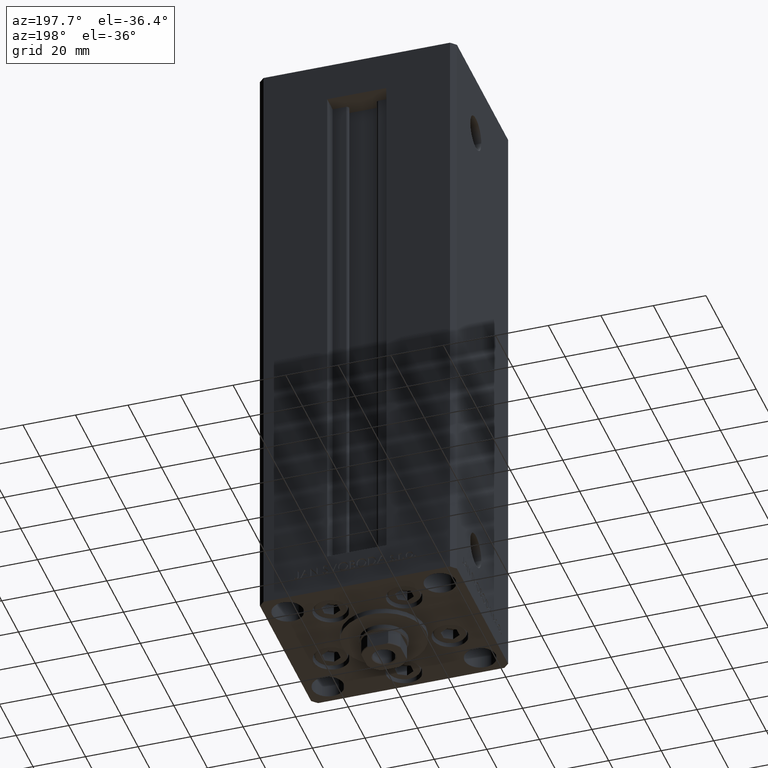
[diagram: clean part render]
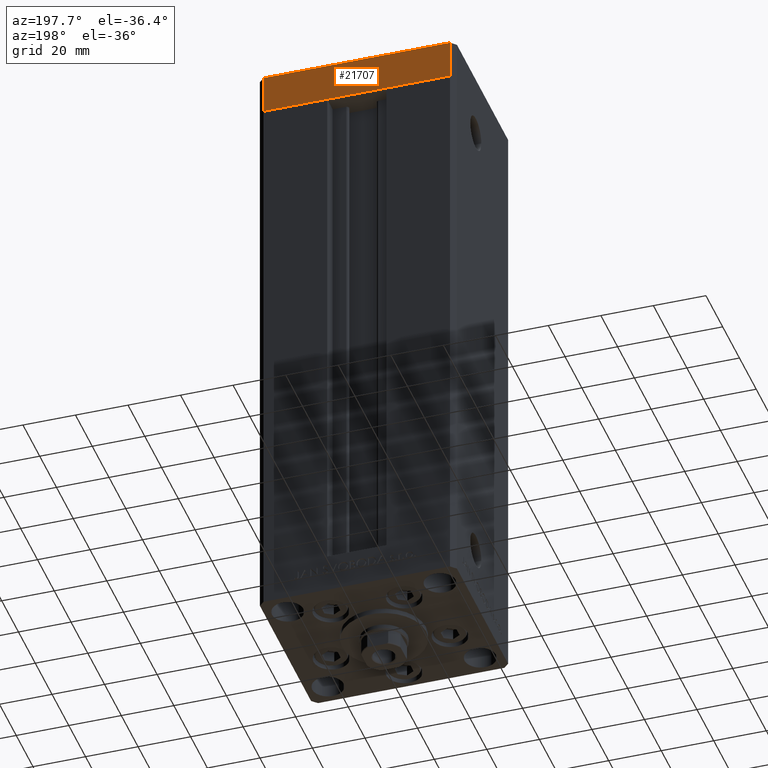
[diagram: same view with one face highlighted and labeled with its STEP entity id]
A machine part, auxiliary view. The second image highlights one B-rep face of the part: STEP entity #21707.
In plain terms, the highlighted planar face has unit normal (-0, 1, 0).
Its self-contained STEP definition (entity closure, byte-faithful):
#128 = VERTEX_POINT ( 'NONE', #33953 ) ;
#961 = ORIENTED_EDGE ( 'NONE', *, *, #27291, .T. ) ;
#1915 = DIRECTION ( 'NONE',  ( 0.000000000000000000, 0.000000000000000000, 1.000000000000000000 ) ) ;
#2843 = CARTESIAN_POINT ( 'NONE',  ( 35.49999999999992184, 32.50000000000000711, -15.00000000000000000 ) ) ;
#3386 = ORIENTED_EDGE ( 'NONE', *, *, #22346, .F. ) ;
#3947 = DIRECTION ( 'NONE',  ( -1.000000000000000000, -1.954618001100629052E-16, 0.000000000000000000 ) ) ;
#4448 = ORIENTED_EDGE ( 'NONE', *, *, #36190, .F. ) ;
#5052 = EDGE_CURVE ( 'NONE', #49564, #22834, #13404, .T. ) ;
#8664 = VECTOR ( 'NONE', #21188, 1000.000000000000000 ) ;
#10598 = CARTESIAN_POINT ( 'NONE',  ( 35.49999999999992184, 32.50000000000000711, -15.00000000000000000 ) ) ;
#11730 = CARTESIAN_POINT ( 'NONE',  ( 35.49999999999992184, 32.50000000000000711, -15.00000000000000000 ) ) ;
#11981 = DIRECTION ( 'NONE',  ( -1.954618001100629052E-16, 1.000000000000000000, 0.000000000000000000 ) ) ;
#12170 = EDGE_LOOP ( 'NONE', ( #3386, #4448, #29431, #961 ) ) ;
#13404 = LINE ( 'NONE', #2843, #8664 ) ;
#15020 = CARTESIAN_POINT ( 'NONE',  ( -35.50000000000002842, 32.49999999999999289, 0.000000000000000000 ) ) ;
#20393 = VECTOR ( 'NONE', #1915, 1000.000000000000000 ) ;
#20865 = CARTESIAN_POINT ( 'NONE',  ( 35.49999999999992184, 32.50000000000000711, -15.00000000000000000 ) ) ;
#21188 = DIRECTION ( 'NONE',  ( -1.000000000000000000, -1.954618001100629052E-16, 0.000000000000000000 ) ) ;
#21248 = LINE ( 'NONE', #28579, #20393 ) ;
#21707 = ADVANCED_FACE ( 'NONE', ( #26822 ), #38384, .T. ) ;
#22346 = EDGE_CURVE ( 'NONE', #128, #31719, #33844, .T. ) ;
#22834 = VERTEX_POINT ( 'NONE', #25634 ) ;
#25634 = CARTESIAN_POINT ( 'NONE',  ( -35.50000000000002842, 32.49999999999999289, -15.00000000000000000 ) ) ;
#26822 = FACE_OUTER_BOUND ( 'NONE', #12170, .T. ) ;
#27291 = EDGE_CURVE ( 'NONE', #22834, #31719, #21248, .T. ) ;
#28391 = AXIS2_PLACEMENT_3D ( 'NONE', #11730, #11981, #3947 ) ;
#28579 = CARTESIAN_POINT ( 'NONE',  ( -35.50000000000002842, 32.49999999999999289, -15.00000000000000000 ) ) ;
#29084 = DIRECTION ( 'NONE',  ( -1.000000000000000000, -1.954618001100629052E-16, 0.000000000000000000 ) ) ;
#29431 = ORIENTED_EDGE ( 'NONE', *, *, #5052, .T. ) ;
#29964 = DIRECTION ( 'NONE',  ( 0.000000000000000000, 0.000000000000000000, 1.000000000000000000 ) ) ;
#31170 = VECTOR ( 'NONE', #29964, 1000.000000000000000 ) ;
#31719 = VERTEX_POINT ( 'NONE', #15020 ) ;
#33844 = LINE ( 'NONE', #49154, #39653 ) ;
#33953 = CARTESIAN_POINT ( 'NONE',  ( 35.49999999999992184, 32.50000000000000711, 0.000000000000000000 ) ) ;
#36190 = EDGE_CURVE ( 'NONE', #49564, #128, #45526, .T. ) ;
#38384 = PLANE ( 'NONE',  #28391 ) ;
#39653 = VECTOR ( 'NONE', #29084, 1000.000000000000000 ) ;
#45526 = LINE ( 'NONE', #10598, #31170 ) ;
#49154 = CARTESIAN_POINT ( 'NONE',  ( 35.49999999999992184, 32.50000000000000711, 0.000000000000000000 ) ) ;
#49564 = VERTEX_POINT ( 'NONE', #20865 ) ;